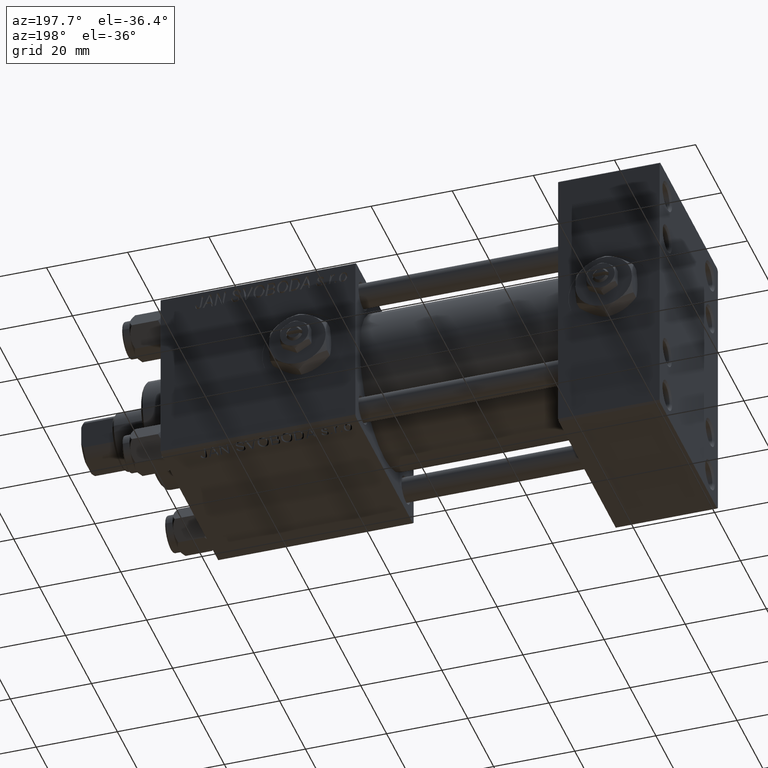
[diagram: clean part render]
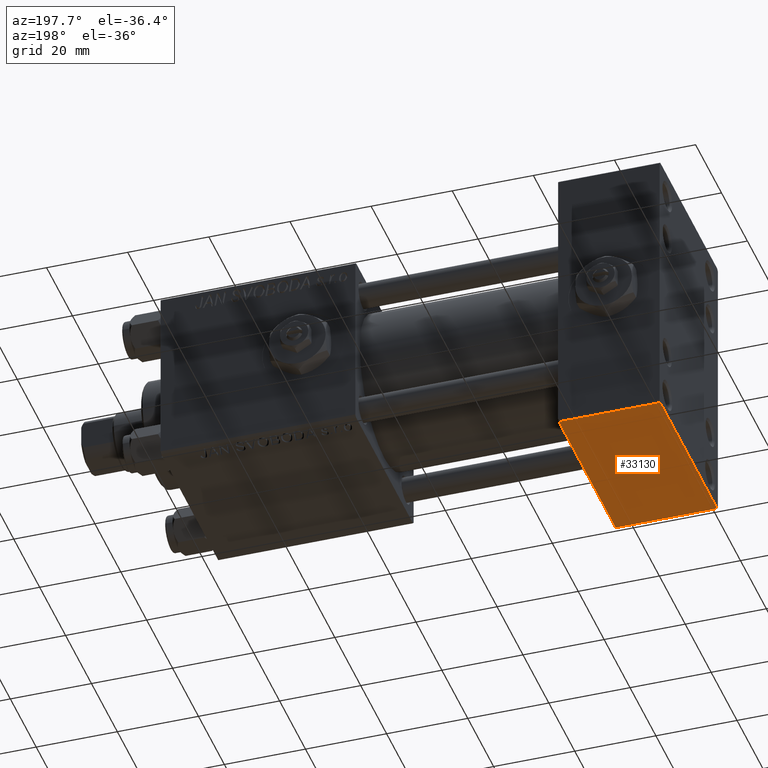
[diagram: same view with one face highlighted and labeled with its STEP entity id]
A machine part, auxiliary view. The second image highlights one B-rep face of the part: STEP entity #33130.
In plain terms, the highlighted planar face has unit normal (0, 0, -1).
Its self-contained STEP definition (entity closure, byte-faithful):
#750 = CARTESIAN_POINT ( 'NONE',  ( 25.00000000000000000, 22.50000000000000355, -34.99999999999999289 ) ) ;
#1073 = DIRECTION ( 'NONE',  ( 1.000000000000000000, 0.000000000000000000, 0.000000000000000000 ) ) ;
#1102 = ORIENTED_EDGE ( 'NONE', *, *, #41220, .T. ) ;
#1915 = EDGE_LOOP ( 'NONE', ( #7095, #32953, #1102, #15250 ) ) ;
#2504 = CARTESIAN_POINT ( 'NONE',  ( 0.000000000000000000, -22.00000000000000355, -35.00000000000000000 ) ) ;
#6809 = PLANE ( 'NONE',  #15056 ) ;
#7095 = ORIENTED_EDGE ( 'NONE', *, *, #9250, .F. ) ;
#9250 = EDGE_CURVE ( 'NONE', #41286, #26137, #15074, .T. ) ;
#10904 = DIRECTION ( 'NONE',  ( -1.000000000000000000, 0.000000000000000000, 0.000000000000000000 ) ) ;
#11128 = CARTESIAN_POINT ( 'NONE',  ( 0.000000000000000000, 22.50000000000000355, -34.99999999999999289 ) ) ;
#12355 = CARTESIAN_POINT ( 'NONE',  ( 0.000000000000000000, -21.99999999999998934, -35.00000000000000000 ) ) ;
#13415 = LINE ( 'NONE', #40782, #50103 ) ;
#15056 = AXIS2_PLACEMENT_3D ( 'NONE', #18375, #27551, #46525 ) ;
#15074 = LINE ( 'NONE', #11128, #37958 ) ;
#15250 = ORIENTED_EDGE ( 'NONE', *, *, #36331, .T. ) ;
#16777 = DIRECTION ( 'NONE',  ( 0.000000000000000000, -1.000000000000000000, -1.541976423090495387E-16 ) ) ;
#18046 = CARTESIAN_POINT ( 'NONE',  ( 25.00000000000000000, 21.99999999999999645, -34.99999999999999289 ) ) ;
#18375 = CARTESIAN_POINT ( 'NONE',  ( 25.00000000000000000, 22.50000000000000355, -34.99999999999999289 ) ) ;
#26137 = VERTEX_POINT ( 'NONE', #12355 ) ;
#26574 = VECTOR ( 'NONE', #10904, 1000.000000000000000 ) ;
#27551 = DIRECTION ( 'NONE',  ( 0.000000000000000000, 1.541976423090495387E-16, -1.000000000000000000 ) ) ;
#31254 = FACE_OUTER_BOUND ( 'NONE', #1915, .T. ) ;
#31352 = CARTESIAN_POINT ( 'NONE',  ( 25.00000000000000000, -21.99999999999998934, -35.00000000000000000 ) ) ;
#32643 = VECTOR ( 'NONE', #16777, 1000.000000000000000 ) ;
#32953 = ORIENTED_EDGE ( 'NONE', *, *, #37435, .T. ) ;
#33130 = ADVANCED_FACE ( 'NONE', ( #31254 ), #6809, .T. ) ;
#35778 = VERTEX_POINT ( 'NONE', #31352 ) ;
#36331 = EDGE_CURVE ( 'NONE', #35778, #26137, #50075, .T. ) ;
#36756 = LINE ( 'NONE', #750, #32643 ) ;
#37435 = EDGE_CURVE ( 'NONE', #41286, #46846, #13415, .T. ) ;
#37958 = VECTOR ( 'NONE', #43211, 1000.000000000000000 ) ;
#40782 = CARTESIAN_POINT ( 'NONE',  ( 25.00000000000000000, 21.99999999999999645, -34.99999999999999289 ) ) ;
#41220 = EDGE_CURVE ( 'NONE', #46846, #35778, #36756, .T. ) ;
#41286 = VERTEX_POINT ( 'NONE', #41746 ) ;
#41746 = CARTESIAN_POINT ( 'NONE',  ( 0.000000000000000000, 21.99999999999999645, -34.99999999999999289 ) ) ;
#43211 = DIRECTION ( 'NONE',  ( 0.000000000000000000, -1.000000000000000000, -1.541976423090495387E-16 ) ) ;
#46525 = DIRECTION ( 'NONE',  ( 0.000000000000000000, 1.000000000000000000, 1.541976423090495387E-16 ) ) ;
#46846 = VERTEX_POINT ( 'NONE', #18046 ) ;
#50075 = LINE ( 'NONE', #2504, #26574 ) ;
#50103 = VECTOR ( 'NONE', #1073, 1000.000000000000000 ) ;